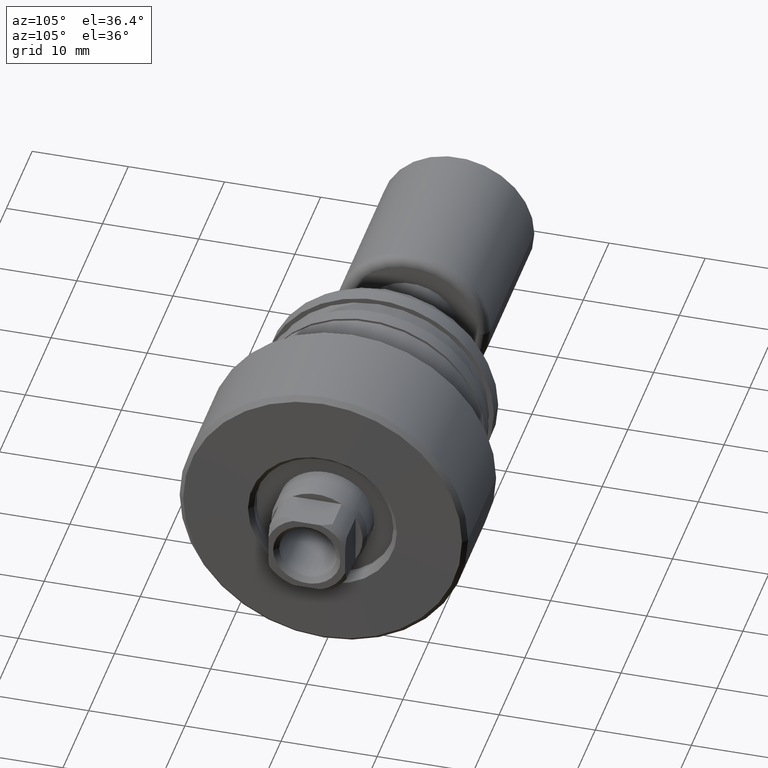
[diagram: clean part render]
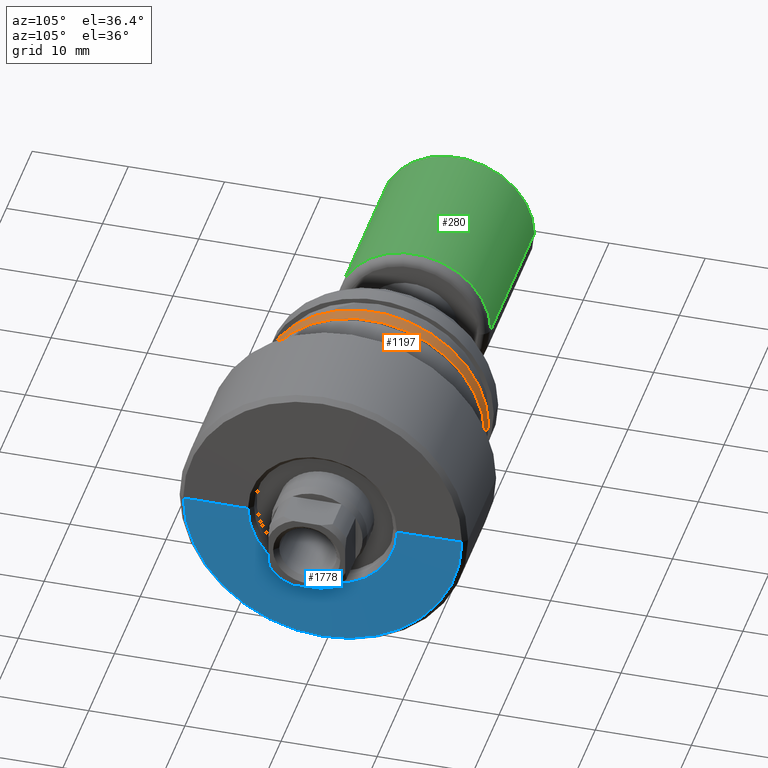
[diagram: same view with three faces highlighted in distinct colors, each labeled with its STEP entity id]
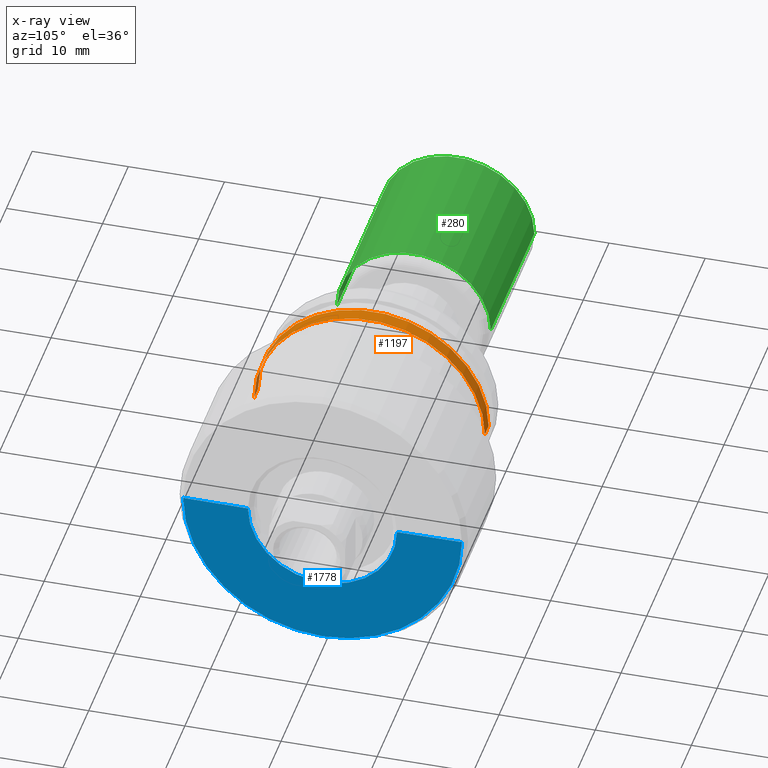
[diagram: x-ray of the same camera — body ghosted, the three highlighted faces saturated]
A machine part, auxiliary view with three faces highlighted in distinct colors.
The next image is the same camera in x-ray (body ghosted, the three faces saturated) — at least one of them is partly hidden behind the body in this view.
Their STEP definitions:

[orange] entity #1197 — the highlighted cylindrical surface (partial cylindrical patch) has radius 12 mm, axis along (-1, 0, 0).
#123 = VERTEX_POINT ( 'NONE', #1509 ) ;
#126 = CARTESIAN_POINT ( 'NONE',  ( -19.80000000000000782, -12.00000000000000355, 0.000000000000000000 ) ) ;
#130 = CARTESIAN_POINT ( 'NONE',  ( -19.79999999999999361, 11.99999999999998934, 1.469576158976823553E-15 ) ) ;
#300 = CARTESIAN_POINT ( 'NONE',  ( -19.80000000000000071, -6.723566832492926967E-15, 0.000000000000000000 ) ) ;
#462 = AXIS2_PLACEMENT_3D ( 'NONE', #2280, #583, #1344 ) ;
#537 = DIRECTION ( 'NONE',  ( -1.000000000000000000, 6.415603269213350828E-16, -0.000000000000000000 ) ) ;
#583 = DIRECTION ( 'NONE',  ( -1.000000000000000000, 6.415603269213350828E-16, -0.000000000000000000 ) ) ;
#731 = VECTOR ( 'NONE', #1158, 1000.000000000000000 ) ;
#774 = CARTESIAN_POINT ( 'NONE',  ( -18.29999999999998650, 11.99999999999998934, 1.469576158976823553E-15 ) ) ;
#828 = EDGE_LOOP ( 'NONE', ( #1219, #1987, #2260, #1791 ) ) ;
#927 = AXIS2_PLACEMENT_3D ( 'NONE', #300, #1643, #1823 ) ;
#937 = AXIS2_PLACEMENT_3D ( 'NONE', #2183, #2163, #2006 ) ;
#994 = EDGE_CURVE ( 'NONE', #1546, #1790, #1254, .T. ) ;
#1042 = EDGE_CURVE ( 'NONE', #1914, #1790, #1693, .T. ) ;
#1158 = DIRECTION ( 'NONE',  ( -1.000000000000000000, 6.415603269213350828E-16, -0.000000000000000000 ) ) ;
#1167 = CARTESIAN_POINT ( 'NONE',  ( -30.28002276692731698, 11.99999999999999645, 1.469576158976823553E-15 ) ) ;
#1197 = ADVANCED_FACE ( 'NONE', ( #1536 ), #2094, .T. ) ;
#1219 = ORIENTED_EDGE ( 'NONE', *, *, #2100, .T. ) ;
#1254 = CIRCLE ( 'NONE', #927, 11.99999999999999645 ) ;
#1344 = DIRECTION ( 'NONE',  ( -5.782411586589358625E-16, -1.000000000000000000, 0.000000000000000000 ) ) ;
#1509 = CARTESIAN_POINT ( 'NONE',  ( -18.30000000000000071, -12.00000000000000355, 0.000000000000000000 ) ) ;
#1536 = FACE_OUTER_BOUND ( 'NONE', #828, .T. ) ;
#1546 = VERTEX_POINT ( 'NONE', #126 ) ;
#1596 = EDGE_CURVE ( 'NONE', #123, #1546, #1752, .T. ) ;
#1643 = DIRECTION ( 'NONE',  ( -1.000000000000000000, 6.415603269213350828E-16, -0.000000000000000000 ) ) ;
#1693 = LINE ( 'NONE', #1167, #2312 ) ;
#1752 = LINE ( 'NONE', #2099, #731 ) ;
#1790 = VERTEX_POINT ( 'NONE', #130 ) ;
#1791 = ORIENTED_EDGE ( 'NONE', *, *, #1596, .F. ) ;
#1823 = DIRECTION ( 'NONE',  ( -5.782411586589358625E-16, -1.000000000000000000, 0.000000000000000000 ) ) ;
#1914 = VERTEX_POINT ( 'NONE', #774 ) ;
#1977 = CIRCLE ( 'NONE', #937, 11.99999999999999645 ) ;
#1987 = ORIENTED_EDGE ( 'NONE', *, *, #1042, .T. ) ;
#2006 = DIRECTION ( 'NONE',  ( -5.782411586589358625E-16, -1.000000000000000000, 0.000000000000000000 ) ) ;
#2094 = CYLINDRICAL_SURFACE ( 'NONE', #462, 11.99999999999999645 ) ;
#2099 = CARTESIAN_POINT ( 'NONE',  ( -30.28002276692733119, -11.99999999999999645, 0.000000000000000000 ) ) ;
#2100 = EDGE_CURVE ( 'NONE', #123, #1914, #1977, .T. ) ;
#2163 = DIRECTION ( 'NONE',  ( -1.000000000000000000, 6.415603269213350828E-16, -0.000000000000000000 ) ) ;
#2183 = CARTESIAN_POINT ( 'NONE',  ( -18.29999999999999361, -7.685907322874935705E-15, 0.000000000000000000 ) ) ;
#2260 = ORIENTED_EDGE ( 'NONE', *, *, #994, .F. ) ;
#2280 = CARTESIAN_POINT ( 'NONE',  ( -30.28002276692732408, 0.000000000000000000, 0.000000000000000000 ) ) ;
#2312 = VECTOR ( 'NONE', #537, 1000.000000000000000 ) ;

[blue] entity #1778 — the highlighted conical surface has half-angle 89.605 deg.
#68 = CARTESIAN_POINT ( 'NONE',  ( -0.05344819386121635318, -1.939217106480840415E-14, 0.000000000000000000 ) ) ;
#201 = VERTEX_POINT ( 'NONE', #1340 ) ;
#242 = EDGE_CURVE ( 'NONE', #487, #2331, #1368, .T. ) ;
#321 = CARTESIAN_POINT ( 'NONE',  ( -0.1000000000006527612, 14.49999999999993427, 1.806354028742341858E-15 ) ) ;
#384 = CARTESIAN_POINT ( 'NONE',  ( -0.1000000000006713574, -14.49999999999997335, 0.000000000000000000 ) ) ;
#448 = EDGE_LOOP ( 'NONE', ( #2430, #1965, #749, #967 ) ) ;
#485 = DIRECTION ( 'NONE',  ( -0.006896387721668857836, 0.9999762196354432531, 1.224617676600016245E-16 ) ) ;
#487 = VERTEX_POINT ( 'NONE', #321 ) ;
#513 = CARTESIAN_POINT ( 'NONE',  ( -0.1000000000006620593, -1.936230527284280752E-14, 0.000000000000000000 ) ) ;
#538 = AXIS2_PLACEMENT_3D ( 'NONE', #68, #2148, #2370 ) ;
#602 = EDGE_CURVE ( 'NONE', #1191, #2331, #2084, .T. ) ;
#749 = ORIENTED_EDGE ( 'NONE', *, *, #602, .T. ) ;
#870 = EDGE_CURVE ( 'NONE', #201, #487, #1470, .T. ) ;
#967 = ORIENTED_EDGE ( 'NONE', *, *, #242, .F. ) ;
#1154 = DIRECTION ( 'NONE',  ( -0.006896387721670141531, -0.9999762196354432531, 0.000000000000000000 ) ) ;
#1191 = VERTEX_POINT ( 'NONE', #1716 ) ;
#1259 = AXIS2_PLACEMENT_3D ( 'NONE', #513, #1273, #1663 ) ;
#1273 = DIRECTION ( 'NONE',  ( -1.000000000000000000, 6.415603269213350828E-16, -0.000000000000000000 ) ) ;
#1275 = CARTESIAN_POINT ( 'NONE',  ( -0.1000000000006713574, -14.49999999999997335, 0.000000000000000000 ) ) ;
#1296 = FACE_OUTER_BOUND ( 'NONE', #448, .T. ) ;
#1340 = CARTESIAN_POINT ( 'NONE',  ( -0.05344819386121137800, 7.749988109817745219, 1.362418835987746714E-15 ) ) ;
#1368 = CIRCLE ( 'NONE', #1451, 14.49999999999995381 ) ;
#1401 = DIRECTION ( 'NONE',  ( -1.000000000000000000, 6.415603269213350828E-16, -0.000000000000000000 ) ) ;
#1451 = AXIS2_PLACEMENT_3D ( 'NONE', #2174, #1401, #2140 ) ;
#1470 = LINE ( 'NONE', #2038, #1775 ) ;
#1663 = DIRECTION ( 'NONE',  ( -6.411747330388434316E-16, -1.000000000000000000, 0.000000000000000000 ) ) ;
#1716 = CARTESIAN_POINT ( 'NONE',  ( -0.05344819386122132837, -7.749988109817783410, 0.000000000000000000 ) ) ;
#1775 = VECTOR ( 'NONE', #485, 1000.000000000000114 ) ;
#1778 = ADVANCED_FACE ( 'NONE', ( #1296 ), #2392, .T. ) ;
#1965 = ORIENTED_EDGE ( 'NONE', *, *, #2212, .T. ) ;
#2038 = CARTESIAN_POINT ( 'NONE',  ( -0.1000000000006527612, 14.49999999999993427, 1.775737858763656690E-15 ) ) ;
#2079 = CIRCLE ( 'NONE', #538, 7.749988109817764759 ) ;
#2084 = LINE ( 'NONE', #384, #2393 ) ;
#2140 = DIRECTION ( 'NONE',  ( -6.411747330388434316E-16, -1.000000000000000000, 0.000000000000000000 ) ) ;
#2148 = DIRECTION ( 'NONE',  ( -1.000000000000000000, 6.415603269213350828E-16, -0.000000000000000000 ) ) ;
#2174 = CARTESIAN_POINT ( 'NONE',  ( -0.1000000000006620593, -1.936230527284280752E-14, 0.000000000000000000 ) ) ;
#2212 = EDGE_CURVE ( 'NONE', #201, #1191, #2079, .T. ) ;
#2331 = VERTEX_POINT ( 'NONE', #1275 ) ;
#2370 = DIRECTION ( 'NONE',  ( -6.417787222120274911E-16, -1.000000000000000000, 0.000000000000000000 ) ) ;
#2392 = CONICAL_SURFACE ( 'NONE', #1259, 14.49999999999995381, 1.563899884406502405 ) ;
#2393 = VECTOR ( 'NONE', #1154, 1000.000000000000114 ) ;
#2430 = ORIENTED_EDGE ( 'NONE', *, *, #870, .F. ) ;

[green] entity #280 — the highlighted cylindrical surface (partial cylindrical patch) has radius 8 mm, axis along (-1, -0, -0).
#92 = CARTESIAN_POINT ( 'NONE',  ( 1.500000000000000888, 7.999999999999996447, 0.000000000000000000 ) ) ;
#117 = EDGE_LOOP ( 'NONE', ( #288, #284, #495, #2249 ) ) ;
#220 = CIRCLE ( 'NONE', #2162, 7.999999999999996447 ) ;
#253 = DIRECTION ( 'NONE',  ( -1.000000000000000000, -1.069542322069065801E-17, -0.000000000000000000 ) ) ;
#271 = DIRECTION ( 'NONE',  ( 1.069542322069065801E-17, -1.000000000000000000, 0.000000000000000000 ) ) ;
#277 = VERTEX_POINT ( 'NONE', #281 ) ;
#280 = ADVANCED_FACE ( 'NONE', ( #292 ), #2329, .T. ) ;
#281 = CARTESIAN_POINT ( 'NONE',  ( 1.500000000000000666, -7.999999999999996447, 9.797174393178821713E-16 ) ) ;
#282 = VERTEX_POINT ( 'NONE', #477 ) ;
#283 = VERTEX_POINT ( 'NONE', #92 ) ;
#284 = ORIENTED_EDGE ( 'NONE', *, *, #1654, .T. ) ;
#288 = ORIENTED_EDGE ( 'NONE', *, *, #1939, .T. ) ;
#292 = FACE_OUTER_BOUND ( 'NONE', #117, .T. ) ;
#390 = EDGE_CURVE ( 'NONE', #282, #277, #704, .T. ) ;
#477 = CARTESIAN_POINT ( 'NONE',  ( 18.40000000000006253, -7.999999999999996447, 0.000000000000000000 ) ) ;
#495 = ORIENTED_EDGE ( 'NONE', *, *, #670, .F. ) ;
#572 = DIRECTION ( 'NONE',  ( 0.000000000000000000, -1.000000000000000000, 0.000000000000000000 ) ) ;
#655 = VECTOR ( 'NONE', #1722, 1000.000000000000000 ) ;
#670 = EDGE_CURVE ( 'NONE', #277, #283, #220, .T. ) ;
#704 = LINE ( 'NONE', #1628, #2317 ) ;
#1007 = CARTESIAN_POINT ( 'NONE',  ( 0.000000000000000000, 0.000000000000000000, 0.000000000000000000 ) ) ;
#1048 = DIRECTION ( 'NONE',  ( -1.000000000000000000, -1.069542322069065801E-17, -0.000000000000000000 ) ) ;
#1102 = AXIS2_PLACEMENT_3D ( 'NONE', #1007, #1048, #271 ) ;
#1341 = LINE ( 'NONE', #2090, #655 ) ;
#1375 = DIRECTION ( 'NONE',  ( 0.000000000000000000, -1.000000000000000000, 0.000000000000000000 ) ) ;
#1472 = DIRECTION ( 'NONE',  ( -1.000000000000000000, -1.069542322069065801E-17, -0.000000000000000000 ) ) ;
#1628 = CARTESIAN_POINT ( 'NONE',  ( 8.556338576552522708E-17, -7.999999999999996447, 0.000000000000000000 ) ) ;
#1654 = EDGE_CURVE ( 'NONE', #2306, #283, #1341, .T. ) ;
#1722 = DIRECTION ( 'NONE',  ( -1.000000000000000000, -1.069542322069065801E-17, -0.000000000000000000 ) ) ;
#1728 = AXIS2_PLACEMENT_3D ( 'NONE', #2326, #2264, #572 ) ;
#1939 = EDGE_CURVE ( 'NONE', #282, #2306, #2320, .T. ) ;
#2090 = CARTESIAN_POINT ( 'NONE',  ( -8.556338576552522708E-17, 7.999999999999996447, 9.797174393178821713E-16 ) ) ;
#2162 = AXIS2_PLACEMENT_3D ( 'NONE', #2338, #253, #1375 ) ;
#2249 = ORIENTED_EDGE ( 'NONE', *, *, #390, .F. ) ;
#2264 = DIRECTION ( 'NONE',  ( -1.000000000000000000, -1.069542322069065801E-17, -0.000000000000000000 ) ) ;
#2306 = VERTEX_POINT ( 'NONE', #2422 ) ;
#2317 = VECTOR ( 'NONE', #1472, 1000.000000000000000 ) ;
#2320 = CIRCLE ( 'NONE', #1728, 7.999999999999996447 ) ;
#2326 = CARTESIAN_POINT ( 'NONE',  ( 18.40000000000006253, 1.967957872607087643E-16, 0.000000000000000000 ) ) ;
#2329 = CYLINDRICAL_SURFACE ( 'NONE', #1102, 7.999999999999996447 ) ;
#2338 = CARTESIAN_POINT ( 'NONE',  ( 1.500000000000000888, 1.604313483103599703E-17, 0.000000000000000000 ) ) ;
#2422 = CARTESIAN_POINT ( 'NONE',  ( 18.40000000000006253, 7.999999999999996447, 9.797174393178821713E-16 ) ) ;